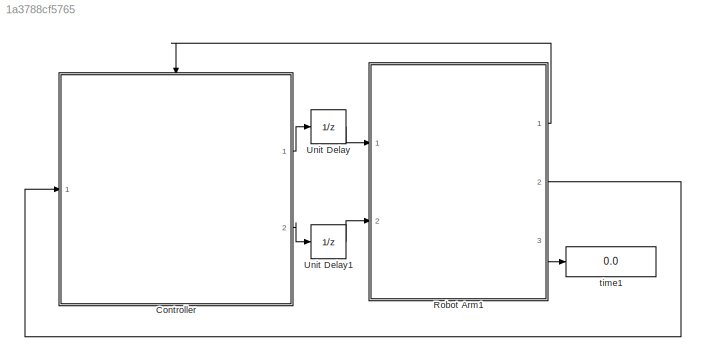
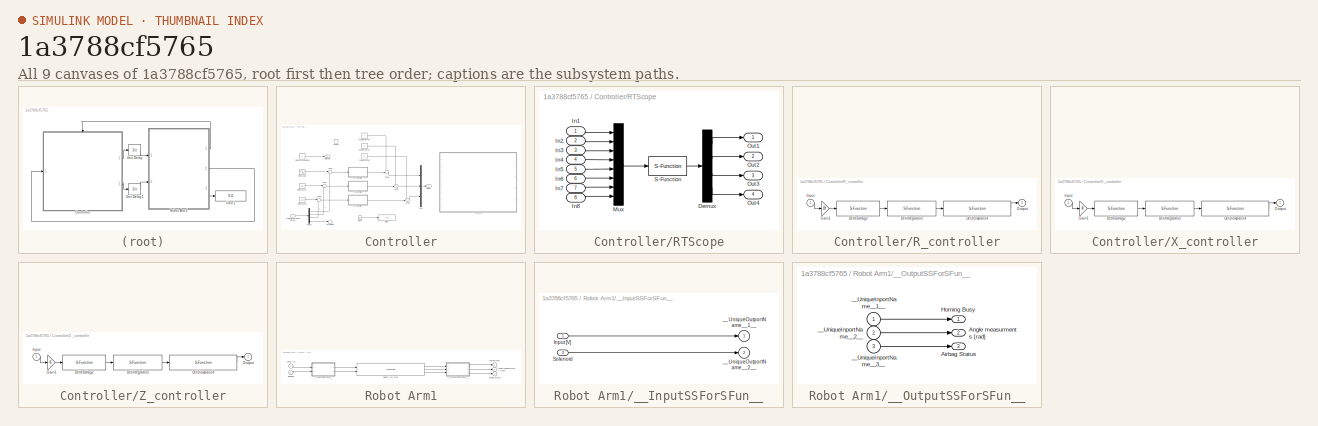
[diagram: thumbnail index - all 9 canvases of the model, root first then tree order]
MODEL slx_1a3788cf5765
KIND model
CONFIG AbsTol = auto
CONFIG FixedStep = 1/(1024*4)
CONFIG MaxStep = auto
CONFIG MinStep = auto
CONFIG RelTol = 1e-3
CONFIG SampleTimeConstraint = Unconstrained
CONFIG Solver = ode3
CONFIG SolverMode = Auto
CONFIG SolverName = ode3
CONFIG StartTime = 0.0
CONFIG StopTime = 50
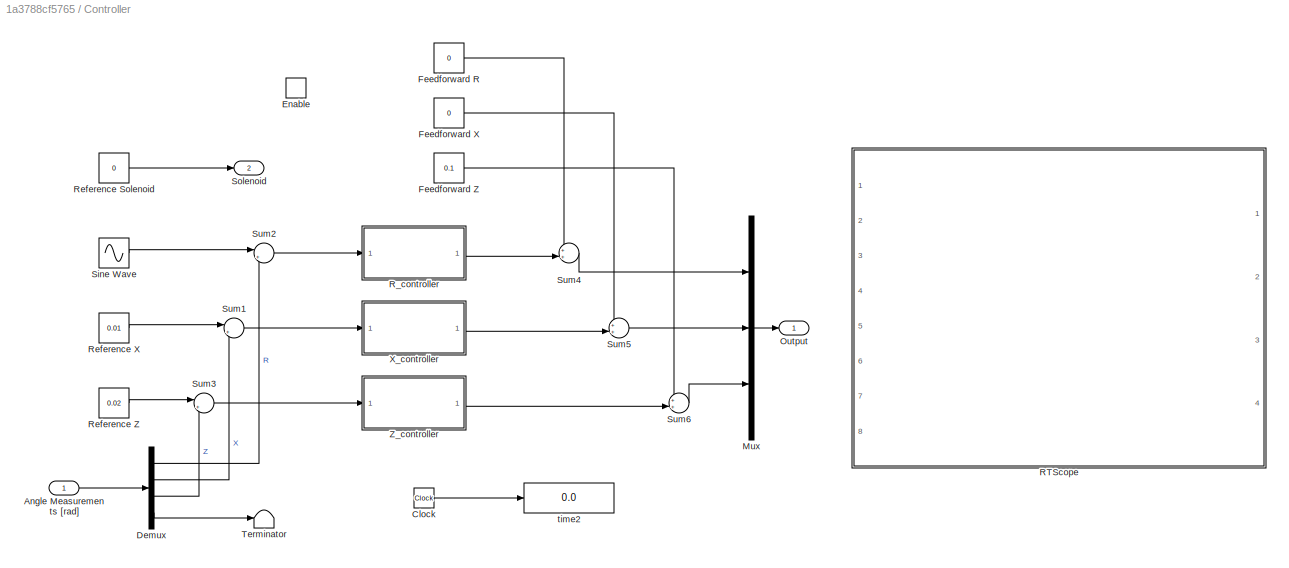
BLOCK [SubSystem] Controller
  Ports = [1, 2, 1]
  RequestExecContextInheritance = off
  Variant = off
BLOCK [Inport] Controller/Angle Measurements [rad]
  IconDisplay = Port number
BLOCK [Clock] Controller/Clock
BLOCK [Demux] Controller/Demux
  DisplayOption = bar
  Ports = [1, 4]
BLOCK [EnablePort] Controller/Enable
  Ports = []
BLOCK [Constant] Controller/Feedforward R
  Value = 0
BLOCK [Constant] Controller/Feedforward X
  Value = 0
BLOCK [Constant] Controller/Feedforward Z
  Value = 0.1
BLOCK [Mux] Controller/Mux
  DisplayOption = bar
  Inputs = 3
  Ports = [3, 1]
BLOCK [Outport] Controller/Output
  IconDisplay = Port number
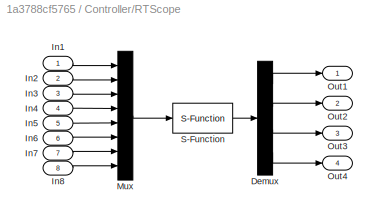
BLOCK [SubSystem] Controller/RTScope
  OpenFcn = rtscope
  Ports = [8, 4]
  RequestExecContextInheritance = off
  Variant = off
BLOCK [Demux] Controller/RTScope/Demux
  Ports = [1, 4]
BLOCK [Inport] Controller/RTScope/In1
  IconDisplay = Port number
BLOCK [Inport] Controller/RTScope/In2
  IconDisplay = Port number
  Port = 2
BLOCK [Inport] Controller/RTScope/In3
  IconDisplay = Port number
  Port = 3
BLOCK [Inport] Controller/RTScope/In4
  IconDisplay = Port number
  Port = 4
BLOCK [Inport] Controller/RTScope/In5
  IconDisplay = Port number
  Port = 5
BLOCK [Inport] Controller/RTScope/In6
  IconDisplay = Port number
  Port = 6
BLOCK [Inport] Controller/RTScope/In7
  IconDisplay = Port number
  Port = 7
BLOCK [Inport] Controller/RTScope/In8
  IconDisplay = Port number
  Port = 8
BLOCK [Mux] Controller/RTScope/Mux
  DisplayOption = bar
  Inputs = 8
  Ports = [8, 1]
BLOCK [Outport] Controller/RTScope/Out1
  IconDisplay = Port number
BLOCK [Outport] Controller/RTScope/Out2
  IconDisplay = Port number
  Port = 2
BLOCK [Outport] Controller/RTScope/Out3
  IconDisplay = Port number
  Port = 3
BLOCK [Outport] Controller/RTScope/Out4
  IconDisplay = Port number
  Port = 4
BLOCK [S-Function] Controller/RTScope/S-Function
  EnableBusSupport = off
  FunctionName = sf_rt_scope
  Parameters = 4096
  Ports = [1, 1]
  SFunctionDeploymentMode = off
BLOCK [SubSystem] Controller/R_controller
  Ports = [1, 1]
  RequestExecContextInheritance = off
  Variant = off
BLOCK [S-Function] Controller/R_controller/Dct2lowpass4
  EnableBusSupport = off
  FunctionName = dlowpass2
  Parameters = f_den, b_den, 0.001
  Ports = [1, 1]
  SFunctionDeploymentMode = off
BLOCK [S-Function] Controller/R_controller/Dctintegrator3
  EnableBusSupport = off
  FunctionName = dweakint
  Parameters = f_num, 0.001
  Ports = [1, 1]
  SFunctionDeploymentMode = off
BLOCK [S-Function] Controller/R_controller/Dctleadlag2
  EnableBusSupport = off
  FunctionName = dleadlag
  Parameters = f_num, f_den, 0.001
  Ports = [1, 1]
  SFunctionDeploymentMode = off
BLOCK [Gain] Controller/R_controller/Gain1
  Gain = 109
BLOCK [Inport] Controller/R_controller/Input
  IconDisplay = Port number
BLOCK [Outport] Controller/R_controller/Output
  IconDisplay = Port number
BLOCK [Constant] Controller/Reference Solenoid
  Value = 0
BLOCK [Constant] Controller/Reference X
  Value = 0.01
BLOCK [Constant] Controller/Reference Z
  Value = 0.02
BLOCK [Sin] Controller/Sine Wave
  Amplitude = 0.2
  Ports = [0, 1]
  SampleTime = 0
BLOCK [Outport] Controller/Solenoid
  IconDisplay = Port number
  InitialOutput = 0
  Port = 2
BLOCK [Sum] Controller/Sum1
  IconShape = round
  InputSameDT = off
  Inputs = |+-
  OutDataTypeStr = Inherit: Inherit via internal rule
  Ports = [2, 1]
  SaturateOnIntegerOverflow = off
BLOCK [Sum] Controller/Sum2
  IconShape = round
  InputSameDT = off
  Inputs = |+-
  OutDataTypeStr = Inherit: Inherit via internal rule
  Ports = [2, 1]
  SaturateOnIntegerOverflow = off
BLOCK [Sum] Controller/Sum3
  IconShape = round
  InputSameDT = off
  Inputs = |+-
  OutDataTypeStr = Inherit: Inherit via internal rule
  Ports = [2, 1]
  SaturateOnIntegerOverflow = off
BLOCK [Sum] Controller/Sum4
  IconShape = round
  Inputs = ++|
  Ports = [2, 1]
BLOCK [Sum] Controller/Sum5
  IconShape = round
  Inputs = ++|
  Ports = [2, 1]
BLOCK [Sum] Controller/Sum6
  IconShape = round
  Inputs = ++|
  Ports = [2, 1]
BLOCK [Terminator] Controller/Terminator
BLOCK [SubSystem] Controller/X_controller
  Ports = [1, 1]
  RequestExecContextInheritance = off
  Variant = off
BLOCK [S-Function] Controller/X_controller/Dct2lowpass4
  EnableBusSupport = off
  FunctionName = dlowpass2
  Parameters = f_den, b_den, 0.001
  Ports = [1, 1]
  SFunctionDeploymentMode = off
BLOCK [S-Function] Controller/X_controller/Dctintegrator3
  EnableBusSupport = off
  FunctionName = dweakint
  Parameters = f_num, 0.001
  Ports = [1, 1]
  SFunctionDeploymentMode = off
BLOCK [S-Function] Controller/X_controller/Dctleadlag2
  EnableBusSupport = off
  FunctionName = dleadlag
  Parameters = f_num, f_den, 0.001
  Ports = [1, 1]
  SFunctionDeploymentMode = off
BLOCK [Gain] Controller/X_controller/Gain1
  Gain = 38
BLOCK [Inport] Controller/X_controller/Input
  IconDisplay = Port number
BLOCK [Outport] Controller/X_controller/Output
  IconDisplay = Port number
BLOCK [SubSystem] Controller/Z_controller
  Ports = [1, 1]
  RequestExecContextInheritance = off
  Variant = off
BLOCK [S-Function] Controller/Z_controller/Dct2lowpass4
  EnableBusSupport = off
  FunctionName = dlowpass2
  Parameters = f_den, b_den, 0.001
  Ports = [1, 1]
  SFunctionDeploymentMode = off
BLOCK [S-Function] Controller/Z_controller/Dctintegrator3
  EnableBusSupport = off
  FunctionName = dweakint
  Parameters = f_num, 0.001
  Ports = [1, 1]
  SFunctionDeploymentMode = off
BLOCK [S-Function] Controller/Z_controller/Dctleadlag2
  EnableBusSupport = off
  FunctionName = dleadlag
  Parameters = f_num, f_den, 0.001
  Ports = [1, 1]
  SFunctionDeploymentMode = off
BLOCK [Gain] Controller/Z_controller/Gain1
  Gain = 45
BLOCK [Inport] Controller/Z_controller/Input
  IconDisplay = Port number
BLOCK [Outport] Controller/Z_controller/Output
  IconDisplay = Port number
BLOCK [Display] Controller/time2
  Decimation = 50
  Ports = [1]
BLOCK [SubSystem] Robot Arm1
  Ports = [2, 3]
  RequestExecContextInheritance = off
  Variant = off
BLOCK [Outport] Robot Arm1/Airbag Status
  IconDisplay = Port number
  Port = 3
BLOCK [Outport] Robot Arm1/Angle measurments [rad]
  IconDisplay = Port number
  Port = 2
BLOCK [Outport] Robot Arm1/Homing Busy
  IconDisplay = Port number
BLOCK [Inport] Robot Arm1/Input [V]
  IconDisplay = Port number
BLOCK [S-Function] Robot Arm1/Robot Arm_sfcn
  CopyFcn = if ~strcmp(get_param(gcb,'Linkstatus'),'none') && ...\n~strcmp(get_param(gcb,'Linkstatus'),'implicit')      \n  set_param(gcb,'LinkStatus','none');                \nend
  EnableBusSupport = off
  FunctionName = Robot_sf
  Ports = [2, 3]
  SFunctionDeploymentMode = off
  SFunctionModules = ec_Ebox dweakint dpd dnotch dlowpass2 ec_EboxResetEnc
BLOCK [Inport] Robot Arm1/Solenoid
  IconDisplay = Port number
  Port = 2
BLOCK [SubSystem] Robot Arm1/__InputSSForSFun__
  PermitHierarchicalResolution = ExplicitOnly
  Ports = [2, 2]
  RequestExecContextInheritance = off
  Variant = off
BLOCK [Inport] Robot Arm1/__InputSSForSFun__/Input [V]
  IconDisplay = Port number
BLOCK [Inport] Robot Arm1/__InputSSForSFun__/Solenoid
  IconDisplay = Port number
  Port = 2
BLOCK [Outport] Robot Arm1/__InputSSForSFun__/__UniqueOutportName__1__
  IconDisplay = Port number
BLOCK [Outport] Robot Arm1/__InputSSForSFun__/__UniqueOutportName__2__
  IconDisplay = Port number
  Port = 2
BLOCK [SubSystem] Robot Arm1/__OutputSSForSFun__
  PermitHierarchicalResolution = ExplicitOnly
  Ports = [3, 3]
  RequestExecContextInheritance = off
  Variant = off
BLOCK [Outport] Robot Arm1/__OutputSSForSFun__/Airbag Status
  IconDisplay = Port number
  Port = 3
BLOCK [Outport] Robot Arm1/__OutputSSForSFun__/Angle measurments [rad]
  IconDisplay = Port number
  Port = 2
BLOCK [Outport] Robot Arm1/__OutputSSForSFun__/Homing Busy
  IconDisplay = Port number
BLOCK [Inport] Robot Arm1/__OutputSSForSFun__/__UniqueInportName__1__
  IconDisplay = Port number
BLOCK [Inport] Robot Arm1/__OutputSSForSFun__/__UniqueInportName__2__
  IconDisplay = Port number
  Port = 2
BLOCK [Inport] Robot Arm1/__OutputSSForSFun__/__UniqueInportName__3__
  IconDisplay = Port number
  Port = 3
BLOCK [UnitDelay] Unit Delay
  InputProcessing = Elements as channels (sample based)
  SampleTime = -1
BLOCK [UnitDelay] Unit Delay1
  InputProcessing = Elements as channels (sample based)
  SampleTime = -1
BLOCK [Display] time1
  Decimation = 50
  Ports = [1]
LINE Controller/Angle Measurements [rad]:1 -> Controller/Demux:1
LINE Controller/Clock:1 -> Controller/time2:1
LINE Controller/Demux:1 -> Controller/Sum2:2
LINE Controller/Demux:2 -> Controller/Sum1:2
LINE Controller/Demux:3 -> Controller/Sum3:2
LINE Controller/Demux:4 -> Controller/Terminator:1
LINE Controller/Feedforward R:1 -> Controller/Sum4:1
LINE Controller/Feedforward X:1 -> Controller/Sum5:1
LINE Controller/Feedforward Z:1 -> Controller/Sum6:1
LINE Controller/Mux:1 -> Controller/Output:1
LINE Controller/RTScope/Demux:1 -> Controller/RTScope/Out1:1
LINE Controller/RTScope/Demux:2 -> Controller/RTScope/Out2:1
LINE Controller/RTScope/Demux:3 -> Controller/RTScope/Out3:1
LINE Controller/RTScope/Demux:4 -> Controller/RTScope/Out4:1
LINE Controller/RTScope/In1:1 -> Controller/RTScope/Mux:1
LINE Controller/RTScope/In2:1 -> Controller/RTScope/Mux:2
LINE Controller/RTScope/In3:1 -> Controller/RTScope/Mux:3
LINE Controller/RTScope/In4:1 -> Controller/RTScope/Mux:4
LINE Controller/RTScope/In5:1 -> Controller/RTScope/Mux:5
LINE Controller/RTScope/In6:1 -> Controller/RTScope/Mux:6
LINE Controller/RTScope/In7:1 -> Controller/RTScope/Mux:7
LINE Controller/RTScope/In8:1 -> Controller/RTScope/Mux:8
LINE Controller/RTScope/Mux:1 -> Controller/RTScope/S-Function:1
LINE Controller/RTScope/S-Function:1 -> Controller/RTScope/Demux:1
LINE Controller/R_controller/Dct2lowpass4:1 -> Controller/R_controller/Output:1
LINE Controller/R_controller/Dctintegrator3:1 -> Controller/R_controller/Dct2lowpass4:1
LINE Controller/R_controller/Dctleadlag2:1 -> Controller/R_controller/Dctintegrator3:1
LINE Controller/R_controller/Gain1:1 -> Controller/R_controller/Dctleadlag2:1
LINE Controller/R_controller/Input:1 -> Controller/R_controller/Gain1:1
LINE Controller/R_controller:1 -> Controller/Sum4:2
LINE Controller/Reference Solenoid:1 -> Controller/Solenoid:1
LINE Controller/Reference X:1 -> Controller/Sum1:1
LINE Controller/Reference Z:1 -> Controller/Sum3:1
LINE Controller/Sine Wave:1 -> Controller/Sum2:1
LINE Controller/Sum1:1 -> Controller/X_controller:1
LINE Controller/Sum2:1 -> Controller/R_controller:1
LINE Controller/Sum3:1 -> Controller/Z_controller:1
LINE Controller/Sum4:1 -> Controller/Mux:1
LINE Controller/Sum5:1 -> Controller/Mux:2
LINE Controller/Sum6:1 -> Controller/Mux:3
LINE Controller/X_controller/Dct2lowpass4:1 -> Controller/X_controller/Output:1
LINE Controller/X_controller/Dctintegrator3:1 -> Controller/X_controller/Dct2lowpass4:1
LINE Controller/X_controller/Dctleadlag2:1 -> Controller/X_controller/Dctintegrator3:1
LINE Controller/X_controller/Gain1:1 -> Controller/X_controller/Dctleadlag2:1
LINE Controller/X_controller/Input:1 -> Controller/X_controller/Gain1:1
LINE Controller/X_controller:1 -> Controller/Sum5:2
LINE Controller/Z_controller/Dct2lowpass4:1 -> Controller/Z_controller/Output:1
LINE Controller/Z_controller/Dctintegrator3:1 -> Controller/Z_controller/Dct2lowpass4:1
LINE Controller/Z_controller/Dctleadlag2:1 -> Controller/Z_controller/Dctintegrator3:1
LINE Controller/Z_controller/Gain1:1 -> Controller/Z_controller/Dctleadlag2:1
LINE Controller/Z_controller/Input:1 -> Controller/Z_controller/Gain1:1
LINE Controller/Z_controller:1 -> Controller/Sum6:2
LINE Controller:1 -> Unit Delay:1
LINE Controller:2 -> Unit Delay1:1
LINE Robot Arm1/Input [V]:1 -> Robot Arm1/__InputSSForSFun__:1
LINE Robot Arm1/Robot Arm_sfcn:1 -> Robot Arm1/__OutputSSForSFun__:1
LINE Robot Arm1/Robot Arm_sfcn:2 -> Robot Arm1/__OutputSSForSFun__:2
LINE Robot Arm1/Robot Arm_sfcn:3 -> Robot Arm1/__OutputSSForSFun__:3
LINE Robot Arm1/Solenoid:1 -> Robot Arm1/__InputSSForSFun__:2
LINE Robot Arm1/__InputSSForSFun__/Input [V]:1 -> Robot Arm1/__InputSSForSFun__/__UniqueOutportName__1__:1
LINE Robot Arm1/__InputSSForSFun__/Solenoid:1 -> Robot Arm1/__InputSSForSFun__/__UniqueOutportName__2__:1
LINE Robot Arm1/__InputSSForSFun__:1 -> Robot Arm1/Robot Arm_sfcn:1
LINE Robot Arm1/__InputSSForSFun__:2 -> Robot Arm1/Robot Arm_sfcn:2
LINE Robot Arm1/__OutputSSForSFun__/__UniqueInportName__1__:1 -> Robot Arm1/__OutputSSForSFun__/Homing Busy:1
LINE Robot Arm1/__OutputSSForSFun__/__UniqueInportName__2__:1 -> Robot Arm1/__OutputSSForSFun__/Angle measurments [rad]:1
LINE Robot Arm1/__OutputSSForSFun__/__UniqueInportName__3__:1 -> Robot Arm1/__OutputSSForSFun__/Airbag Status:1
LINE Robot Arm1/__OutputSSForSFun__:1 -> Robot Arm1/Homing Busy:1
LINE Robot Arm1/__OutputSSForSFun__:2 -> Robot Arm1/Angle measurments [rad]:1
LINE Robot Arm1/__OutputSSForSFun__:3 -> Robot Arm1/Airbag Status:1
LINE Robot Arm1:1 -> Controller:enable
LINE Robot Arm1:2 -> Controller:1
LINE Robot Arm1:3 -> time1:1
LINE Unit Delay1:1 -> Robot Arm1:2
LINE Unit Delay:1 -> Robot Arm1:1
